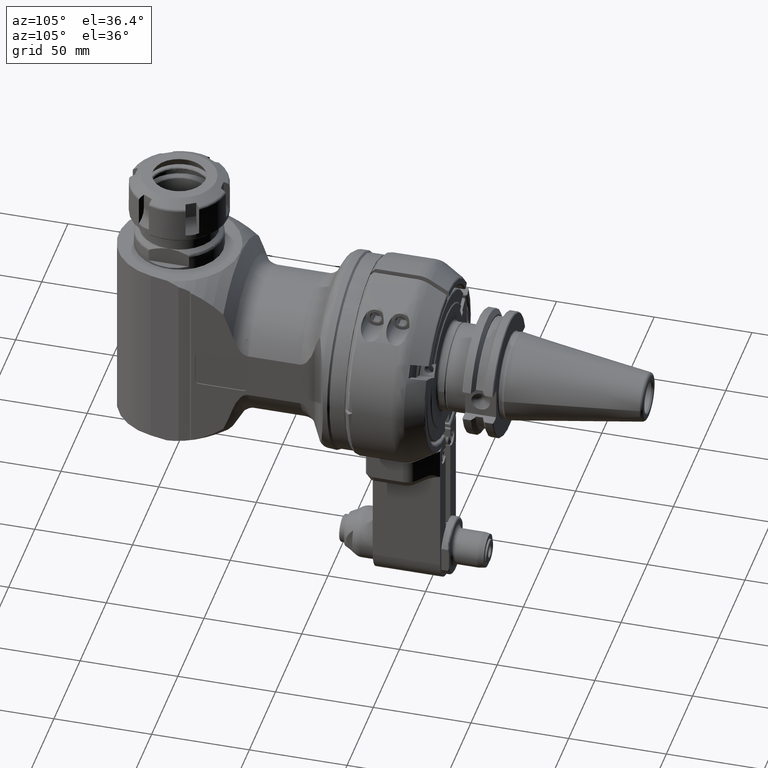
[diagram: clean part render]
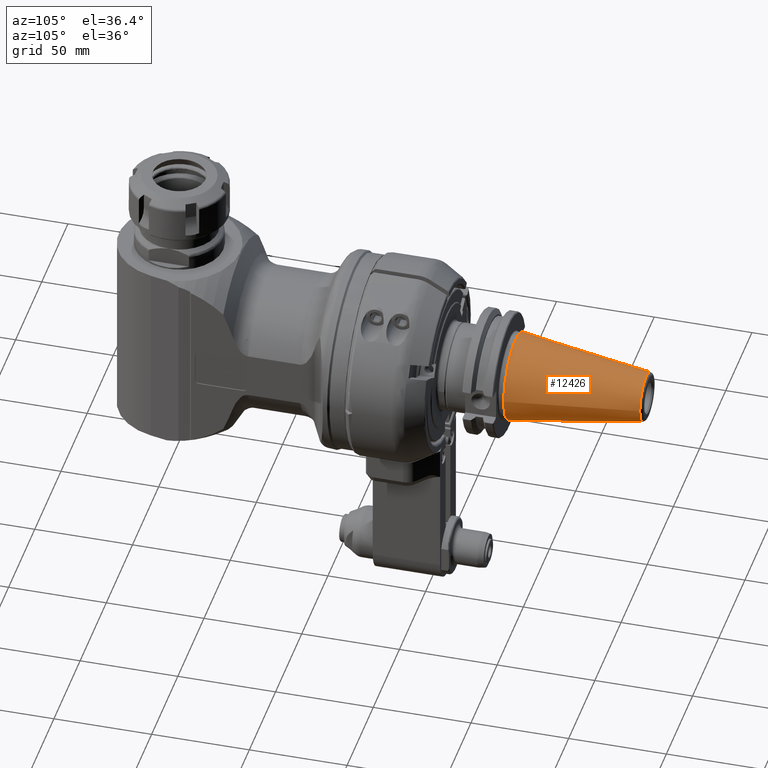
[diagram: same view with one face highlighted and labeled with its STEP entity id]
A machine part, auxiliary view. The second image highlights one B-rep face of the part: STEP entity #12426.
In plain terms, the highlighted conical surface has half-angle 8.297 deg.
Its self-contained STEP definition (entity closure, byte-faithful):
#173=CONICAL_SURFACE('',#13681,17.34203190906,0.144812411498922);
#1547=LINE('',#28801,#2435);
#2435=VECTOR('',#16898,17.34203190906);
#3264=FACE_OUTER_BOUND('',#4015,.T.);
#4015=EDGE_LOOP('',(#11238,#11239,#11240,#11241,#11242));
#4617=CIRCLE('',#13680,22.225);
#4618=CIRCLE('',#13682,12.45906381812);
#4619=CIRCLE('',#13683,12.45906381812);
#5879=VERTEX_POINT('',#28796);
#5880=VERTEX_POINT('',#28800);
#5881=VERTEX_POINT('',#28802);
#7682=EDGE_CURVE('',#5879,#5879,#4617,.T.);
#7684=EDGE_CURVE('',#5879,#5880,#1547,.T.);
#7685=EDGE_CURVE('',#5881,#5880,#4618,.T.);
#7686=EDGE_CURVE('',#5880,#5881,#4619,.T.);
#11238=ORIENTED_EDGE('',*,*,#7682,.F.);
#11239=ORIENTED_EDGE('',*,*,#7684,.T.);
#11240=ORIENTED_EDGE('',*,*,#7685,.F.);
#11241=ORIENTED_EDGE('',*,*,#7686,.F.);
#11242=ORIENTED_EDGE('',*,*,#7684,.F.);
#12426=ADVANCED_FACE('',(#3264),#173,.T.);
#13680=AXIS2_PLACEMENT_3D('',#28797,#16893,#16894);
#13681=AXIS2_PLACEMENT_3D('',#28799,#16896,#16897);
#13682=AXIS2_PLACEMENT_3D('',#28803,#16899,#16900);
#13683=AXIS2_PLACEMENT_3D('',#28804,#16901,#16902);
#16893=DIRECTION('center_axis',(0.,-1.,0.));
#16894=DIRECTION('ref_axis',(1.,0.,0.));
#16896=DIRECTION('center_axis',(0.,-1.,0.));
#16897=DIRECTION('ref_axis',(-1.,0.,0.));
#16898=DIRECTION('',(-0.144306807239621,0.98953299358046,-1.76724869581176E-17));
#16899=DIRECTION('center_axis',(0.,1.,0.));
#16900=DIRECTION('ref_axis',(1.,0.,0.));
#16901=DIRECTION('center_axis',(0.,1.,0.));
#16902=DIRECTION('ref_axis',(1.,0.,0.));
#28796=CARTESIAN_POINT('',(22.2249999999967,74.0000000000009,-2.72177751110459E-15));
#28797=CARTESIAN_POINT('Origin',(0.,74.,0.));
#28799=CARTESIAN_POINT('Origin',(0.,107.4832301054,0.));
#28800=CARTESIAN_POINT('',(12.45906381812,140.9664602109,0.));
#28801=CARTESIAN_POINT('',(17.34203190906,107.4832301054,2.12378638681416E-15));
#28802=CARTESIAN_POINT('',(-12.45906381812,140.9664602109,-1.52579526252333E-15));
#28803=CARTESIAN_POINT('Origin',(0.,140.9664602109,0.));
#28804=CARTESIAN_POINT('Origin',(0.,140.9664602109,0.));